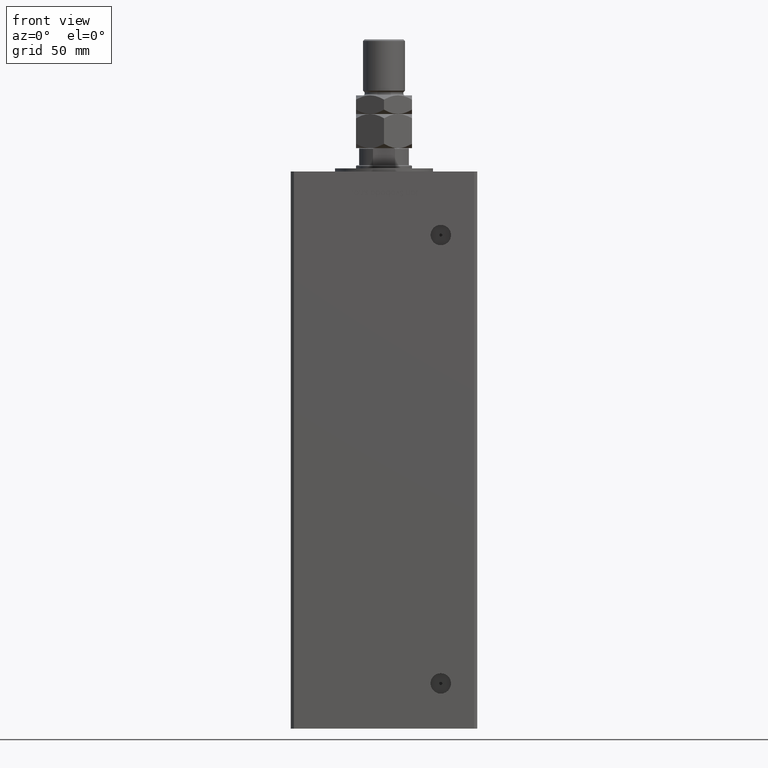
[diagram: clean part render]
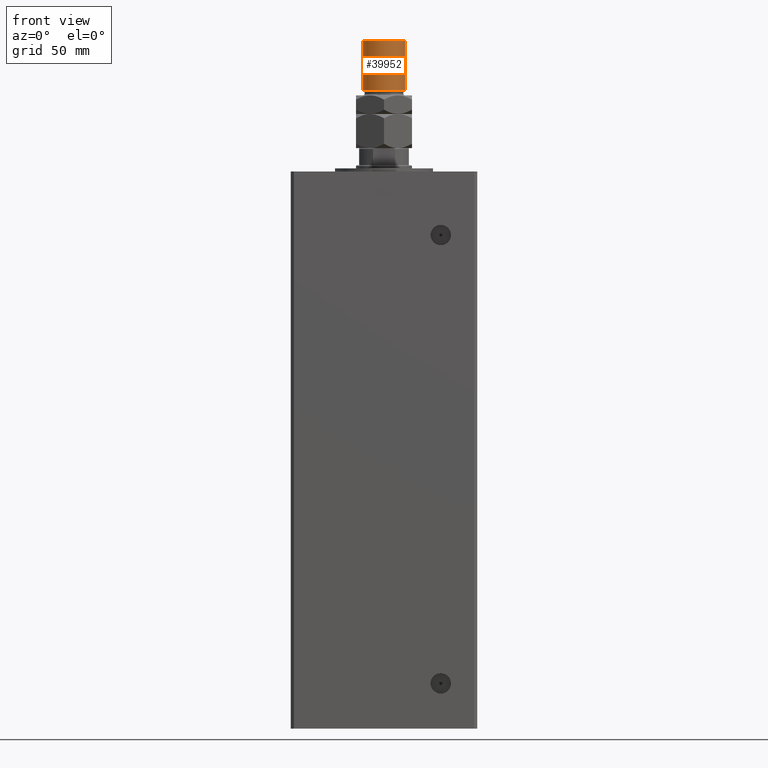
[diagram: same view with one face highlighted and labeled with its STEP entity id]
A machine part, front view. The second image highlights one B-rep face of the part: STEP entity #39952.
In plain terms, the highlighted cylindrical surface (edge-blend (fillet) strip) has radius 13.5 mm, axis along (-0, -0, -1).
Its self-contained STEP definition (entity closure, byte-faithful):
#1590 = EDGE_CURVE ( 'NONE', #49487, #18611, #23178, .T. ) ;
#1852 = ORIENTED_EDGE ( 'NONE', *, *, #33100, .F. ) ;
#1915 = VECTOR ( 'NONE', #9921, 1000.000000000000000 ) ;
#2519 = DIRECTION ( 'NONE',  ( 1.000000000000000000, 0.000000000000000000, 0.000000000000000000 ) ) ;
#3737 = EDGE_CURVE ( 'NONE', #20182, #13167, #30208, .T. ) ;
#7420 = DIRECTION ( 'NONE',  ( 0.000000000000000000, 0.000000000000000000, -1.000000000000000000 ) ) ;
#9921 = DIRECTION ( 'NONE',  ( -0.000000000000000000, -0.000000000000000000, -1.000000000000000000 ) ) ;
#13167 = VERTEX_POINT ( 'NONE', #43000 ) ;
#13206 = CARTESIAN_POINT ( 'NONE',  ( -13.50000000000000000, 0.000000000000000000, 68.99999999999998579 ) ) ;
#15815 = DIRECTION ( 'NONE',  ( -0.000000000000000000, -0.000000000000000000, 1.000000000000000000 ) ) ;
#17578 = CARTESIAN_POINT ( 'NONE',  ( -13.50000000000000000, 0.000000000000000000, 37.00000000000000000 ) ) ;
#18005 = ORIENTED_EDGE ( 'NONE', *, *, #22212, .T. ) ;
#18611 = VERTEX_POINT ( 'NONE', #13206 ) ;
#18737 = DIRECTION ( 'NONE',  ( -0.000000000000000000, -0.000000000000000000, -1.000000000000000000 ) ) ;
#19765 = CARTESIAN_POINT ( 'NONE',  ( 13.50000000000000000, 1.653273178848926867E-15, 68.99999999999998579 ) ) ;
#20182 = VERTEX_POINT ( 'NONE', #17578 ) ;
#22130 = CARTESIAN_POINT ( 'NONE',  ( -13.50000000000000000, 0.000000000000000000, 70.00000000000000000 ) ) ;
#22212 = EDGE_CURVE ( 'NONE', #18611, #20182, #42776, .T. ) ;
#22913 = DIRECTION ( 'NONE',  ( -0.000000000000000000, -0.000000000000000000, -1.000000000000000000 ) ) ;
#23178 = CIRCLE ( 'NONE', #24900, 13.50000000000000000 ) ;
#24209 = CARTESIAN_POINT ( 'NONE',  ( 0.000000000000000000, 0.000000000000000000, 37.00000000000000000 ) ) ;
#24781 = AXIS2_PLACEMENT_3D ( 'NONE', #47907, #22913, #28072 ) ;
#24900 = AXIS2_PLACEMENT_3D ( 'NONE', #52520, #7420, #2519 ) ;
#25020 = ORIENTED_EDGE ( 'NONE', *, *, #1590, .T. ) ;
#26985 = CYLINDRICAL_SURFACE ( 'NONE', #24781, 13.50000000000000000 ) ;
#27596 = AXIS2_PLACEMENT_3D ( 'NONE', #24209, #15815, #44045 ) ;
#28072 = DIRECTION ( 'NONE',  ( -1.000000000000000000, 0.000000000000000000, 0.000000000000000000 ) ) ;
#29914 = ORIENTED_EDGE ( 'NONE', *, *, #3737, .T. ) ;
#30208 = CIRCLE ( 'NONE', #27596, 13.50000000000000000 ) ;
#33100 = EDGE_CURVE ( 'NONE', #49487, #13167, #35045, .T. ) ;
#35045 = LINE ( 'NONE', #52161, #41183 ) ;
#39952 = ADVANCED_FACE ( 'NONE', ( #48448 ), #26985, .T. ) ;
#41183 = VECTOR ( 'NONE', #18737, 1000.000000000000000 ) ;
#42776 = LINE ( 'NONE', #22130, #1915 ) ;
#43000 = CARTESIAN_POINT ( 'NONE',  ( 13.50000000000000000, 1.653273178848926867E-15, 37.00000000000000000 ) ) ;
#44045 = DIRECTION ( 'NONE',  ( 1.000000000000000000, 0.000000000000000000, 0.000000000000000000 ) ) ;
#47907 = CARTESIAN_POINT ( 'NONE',  ( 0.000000000000000000, 0.000000000000000000, 70.00000000000000000 ) ) ;
#48337 = EDGE_LOOP ( 'NONE', ( #1852, #25020, #18005, #29914 ) ) ;
#48448 = FACE_OUTER_BOUND ( 'NONE', #48337, .T. ) ;
#49487 = VERTEX_POINT ( 'NONE', #19765 ) ;
#52161 = CARTESIAN_POINT ( 'NONE',  ( 13.50000000000000000, 1.653273178848926867E-15, 70.00000000000000000 ) ) ;
#52520 = CARTESIAN_POINT ( 'NONE',  ( 0.000000000000000000, 0.000000000000000000, 68.99999999999998579 ) ) ;